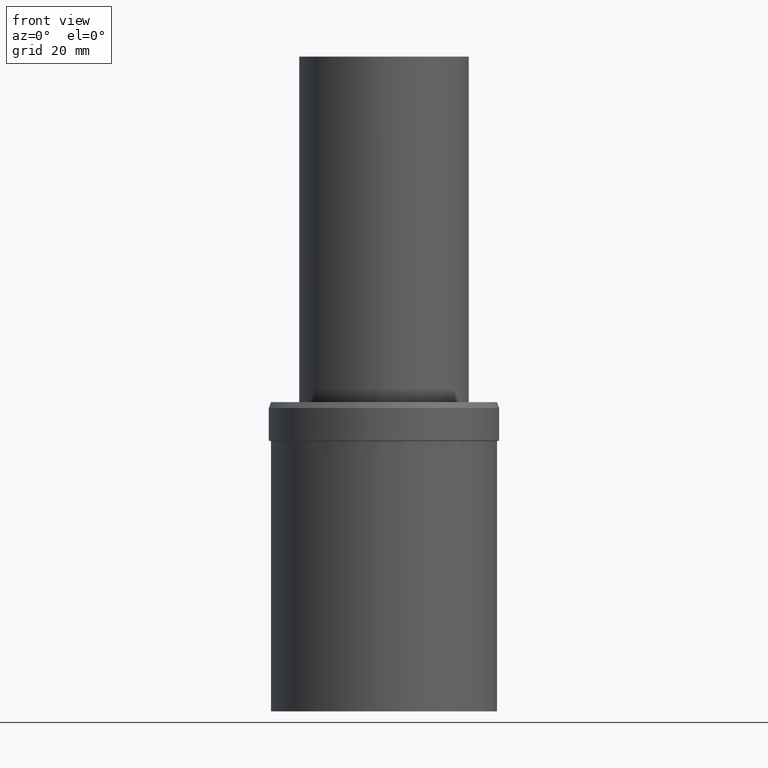
[diagram: clean part render]
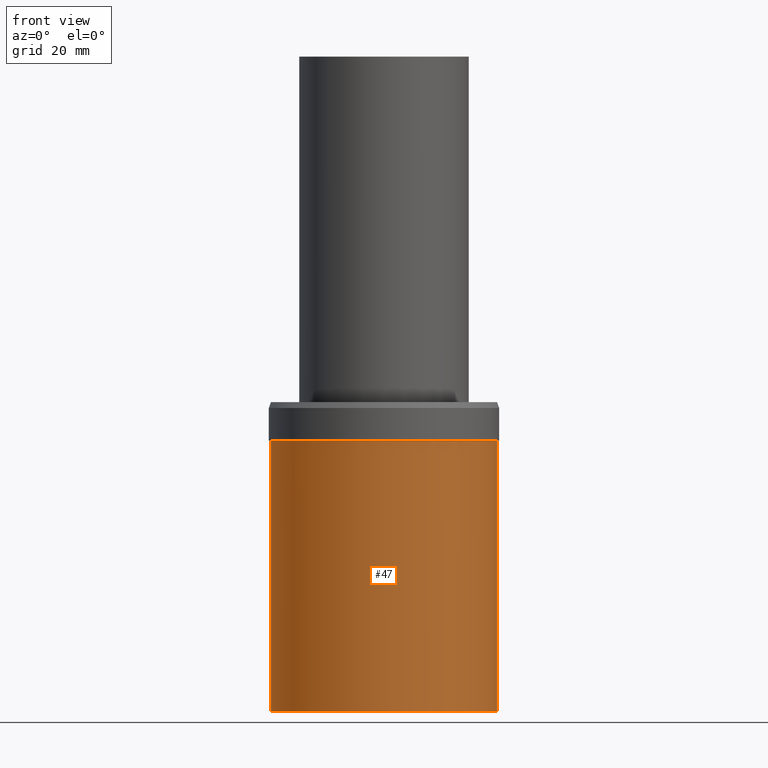
[diagram: same view with one face highlighted and labeled with its STEP entity id]
A machine part, front view. The second image highlights one B-rep face of the part: STEP entity #47.
In plain terms, the highlighted cylindrical surface (bore or boss wall) has radius 26.5 mm, axis along (0, 0, -1).
Its self-contained STEP definition (entity closure, byte-faithful):
#47=ADVANCED_FACE('Unnamed[1]',(#108,#109),#110,.T.);
#51=EDGE_CURVE('Unnamed[1]',#115,#115,#116,.T.);
#53=EDGE_CURVE('Unnamed[1]',#118,#118,#119,.T.);
#108=FACE_BOUND('',#179,.T.);
#109=FACE_BOUND('',#180,.T.);
#110=CYLINDRICAL_SURFACE('',#181,26.5000000000001);
#115=VERTEX_POINT('',#188);
#116=CIRCLE('',#189,26.5000000000005);
#118=VERTEX_POINT('',#192);
#119=CIRCLE('',#193,26.4999999999998);
#179=EDGE_LOOP('',(#255));
#180=EDGE_LOOP('',(#256));
#181=AXIS2_PLACEMENT_3D('',#257,#258,#259);
#188=CARTESIAN_POINT('',(-3.88005000927112E-015,26.5000000000005,63.3660254037746));
#189=AXIS2_PLACEMENT_3D('',#263,#264,#265);
#192=CARTESIAN_POINT('',(0.0,26.4999999999998,0.0));
#193=AXIS2_PLACEMENT_3D('',#266,#267,#268);
#255=ORIENTED_EDGE('',*,*,#53,.F.);
#256=ORIENTED_EDGE('',*,*,#51,.T.);
#257=CARTESIAN_POINT('',(-1.94002500463556E-015,-3.88005000927112E-015,31.6830127018873));
#258=DIRECTION('',(6.12323399573677E-017,1.22464679914764E-016,-1.0));
#259=DIRECTION('',(-1.23259516440783E-032,1.0,1.22464679914764E-016));
#263=CARTESIAN_POINT('',(-3.88005000927112E-015,-7.76010001854224E-015,63.3660254037746));
#264=DIRECTION('',(6.12323399573677E-017,1.22464679914762E-016,-1.0));
#265=DIRECTION('',(-1.23259516440781E-032,1.0,1.22464679914762E-016));
#266=CARTESIAN_POINT('',(0.0,0.0,0.0));
#267=DIRECTION('',(6.12323399573677E-017,1.22464679914765E-016,-1.0));
#268=DIRECTION('',(-1.23259516440784E-032,1.0,1.22464679914765E-016));